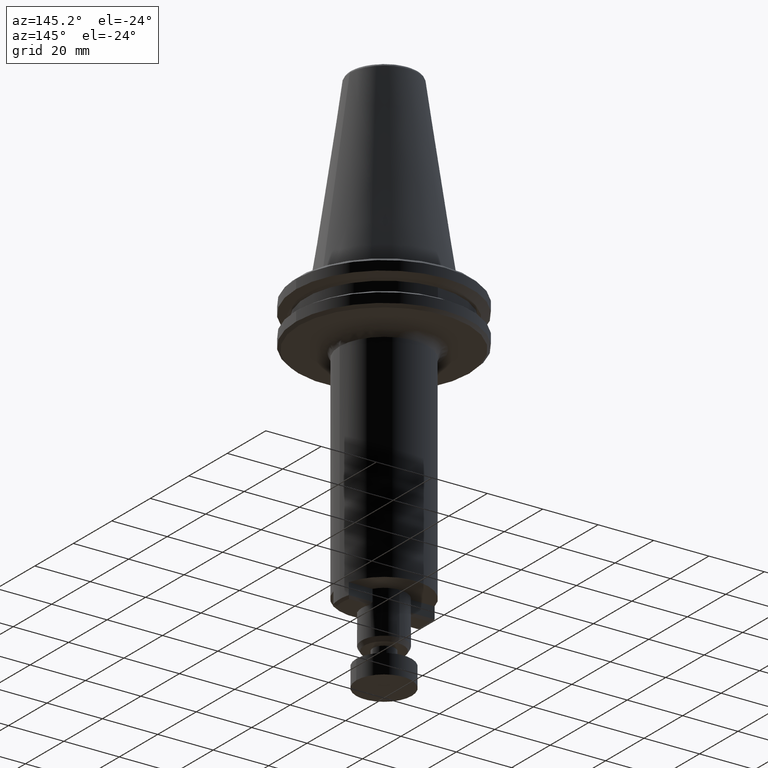
[diagram: clean part render]
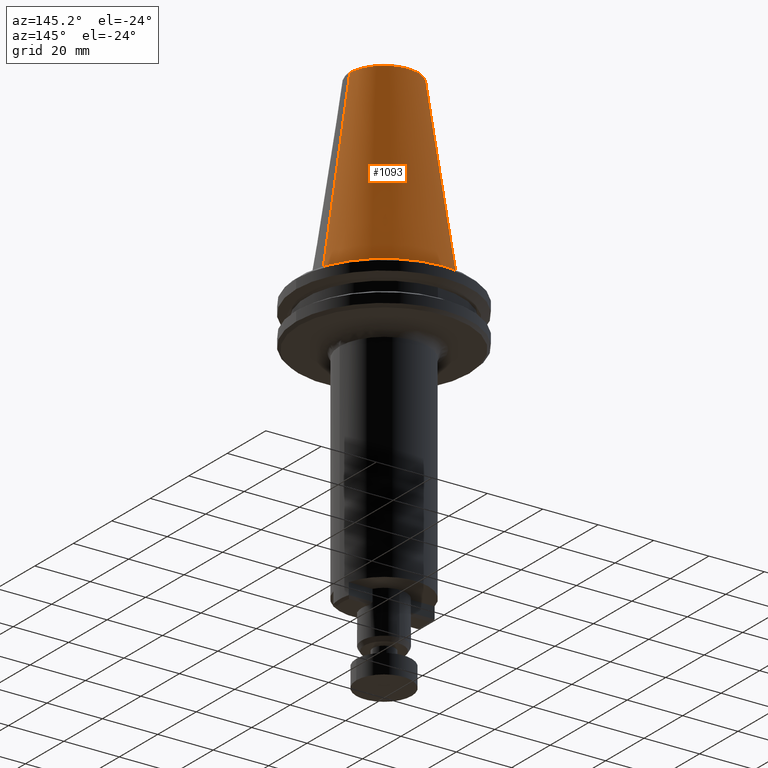
[diagram: same view with one face highlighted and labeled with its STEP entity id]
A machine part, auxiliary view. The second image highlights one B-rep face of the part: STEP entity #1093.
In plain terms, the highlighted conical surface has half-angle 8.297 deg.
Its self-contained STEP definition (entity closure, byte-faithful):
#33 = AXIS2_PLACEMENT_3D ( 'NONE', #968, #372, #1107 ) ;
#53 = DIRECTION ( 'NONE',  ( -0.1443082272694599400, 0.0000000000000000000, -0.9895327864918603800 ) ) ;
#139 = AXIS2_PLACEMENT_3D ( 'NONE', #1184, #2156, #2221 ) ;
#297 = CONICAL_SURFACE ( 'NONE', #33, 22.22499999999999400, 0.1448138465495947800 ) ;
#316 = VERTEX_POINT ( 'NONE', #2127 ) ;
#372 = DIRECTION ( 'NONE',  ( 0.0000000000000000000, 0.0000000000000000000, -1.000000000000000000 ) ) ;
#434 = ORIENTED_EDGE ( 'NONE', *, *, #1900, .T. ) ;
#478 = FACE_OUTER_BOUND ( 'NONE', #761, .T. ) ;
#568 = DIRECTION ( 'NONE',  ( -1.000000000000000000, 0.0000000000000000000, 0.0000000000000000000 ) ) ;
#603 = CARTESIAN_POINT ( 'NONE',  ( 0.0000000000000000000, 0.0000000000000000000, 0.0000000000000000000 ) ) ;
#736 = EDGE_CURVE ( 'NONE', #316, #1120, #1159, .T. ) ;
#750 = AXIS2_PLACEMENT_3D ( 'NONE', #603, #757, #568 ) ;
#754 = VERTEX_POINT ( 'NONE', #1493 ) ;
#757 = DIRECTION ( 'NONE',  ( -0.0000000000000000000, -0.0000000000000000000, 1.000000000000000000 ) ) ;
#761 = EDGE_LOOP ( 'NONE', ( #1441, #434, #1046, #1185 ) ) ;
#900 = LINE ( 'NONE', #1789, #2186 ) ;
#968 = CARTESIAN_POINT ( 'NONE',  ( 0.0000000000000000000, 0.0000000000000000000, 0.0000000000000000000 ) ) ;
#1046 = ORIENTED_EDGE ( 'NONE', *, *, #1832, .T. ) ;
#1093 = ADVANCED_FACE ( 'NONE', ( #478 ), #297, .T. ) ;
#1107 = DIRECTION ( 'NONE',  ( -1.000000000000000000, 0.0000000000000000000, 0.0000000000000000000 ) ) ;
#1120 = VERTEX_POINT ( 'NONE', #1739 ) ;
#1138 = CARTESIAN_POINT ( 'NONE',  ( 22.22499999999999400, 2.721777511104992100E-015, 0.0000000000000000000 ) ) ;
#1153 = VECTOR ( 'NONE', #53, 1000.000000000000100 ) ;
#1159 = LINE ( 'NONE', #1252, #1153 ) ;
#1184 = CARTESIAN_POINT ( 'NONE',  ( 0.0000000000000000000, 0.0000000000000000000, 67.54430822699998800 ) ) ;
#1185 = ORIENTED_EDGE ( 'NONE', *, *, #736, .F. ) ;
#1238 = CIRCLE ( 'NONE', #750, 22.22499999999999400 ) ;
#1252 = CARTESIAN_POINT ( 'NONE',  ( -22.22499999999999400, 0.0000000000000000000, 0.0000000000000000000 ) ) ;
#1441 = ORIENTED_EDGE ( 'NONE', *, *, #2226, .T. ) ;
#1493 = CARTESIAN_POINT ( 'NONE',  ( 12.37469537590452100, -2.855354478374084000E-009, 67.54430822699950500 ) ) ;
#1653 = VERTEX_POINT ( 'NONE', #1138 ) ;
#1739 = CARTESIAN_POINT ( 'NONE',  ( -22.22499999999999400, 0.0000000000000000000, 0.0000000000000000000 ) ) ;
#1789 = CARTESIAN_POINT ( 'NONE',  ( 22.22499999999999400, 2.721777511104992100E-015, 0.0000000000000000000 ) ) ;
#1800 = DIRECTION ( 'NONE',  ( 0.1443082272694599400, 1.767266086161729200E-017, -0.9895327864918603800 ) ) ;
#1832 = EDGE_CURVE ( 'NONE', #1653, #1120, #1238, .T. ) ;
#1900 = EDGE_CURVE ( 'NONE', #754, #1653, #900, .T. ) ;
#2058 = CIRCLE ( 'NONE', #139, 12.37469537600000400 ) ;
#2127 = CARTESIAN_POINT ( 'NONE',  ( -12.37469537590595300, -5.555843992514513000E-010, 67.54430822698967100 ) ) ;
#2156 = DIRECTION ( 'NONE',  ( 0.0000000000000000000, 0.0000000000000000000, -1.000000000000000000 ) ) ;
#2186 = VECTOR ( 'NONE', #1800, 1000.000000000000100 ) ;
#2221 = DIRECTION ( 'NONE',  ( -1.000000000000000000, 0.0000000000000000000, 0.0000000000000000000 ) ) ;
#2226 = EDGE_CURVE ( 'NONE', #316, #754, #2058, .T. ) ;